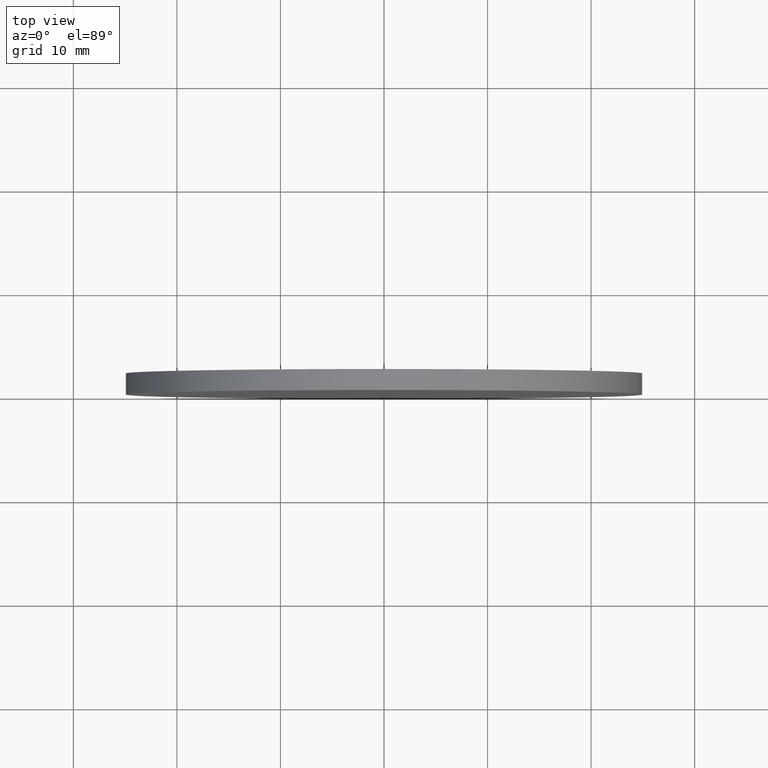
[diagram: clean part render]
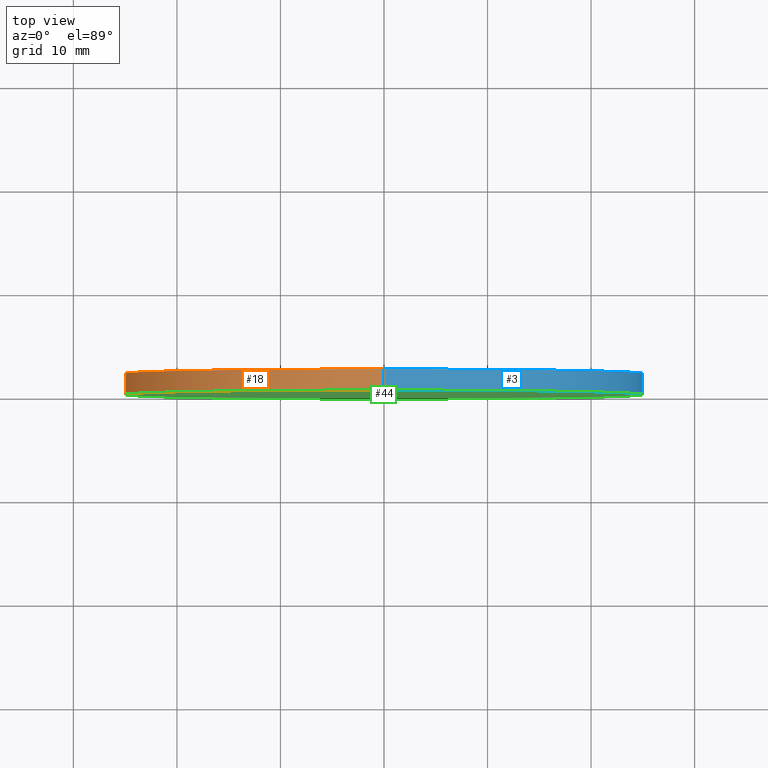
[diagram: same view with three faces highlighted in distinct colors, each labeled with its STEP entity id]
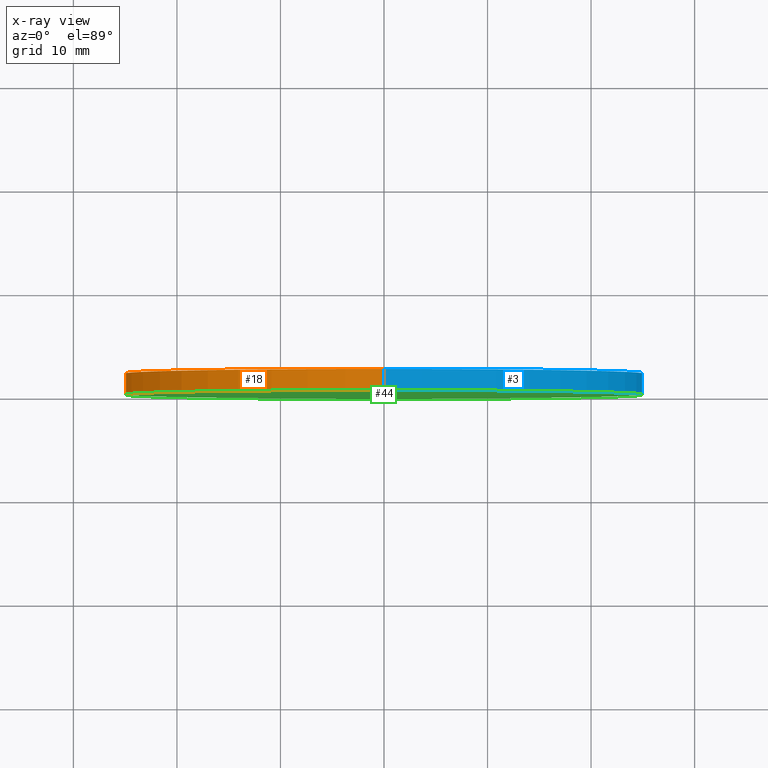
[diagram: x-ray of the same camera — body ghosted, the three highlighted faces saturated]
A machine part, top view with three faces highlighted in distinct colors.
The next image is the same camera in x-ray (body ghosted, the three faces saturated) — at least one of them is partly hidden behind the body in this view.
Their STEP definitions:

[orange] entity #18 — the highlighted cylindrical surface (partial cylindrical patch) has radius 25 mm, axis along (-0, -1, -0).
#1 = VERTEX_POINT ( 'NONE', #31 ) ;
#2 = FACE_OUTER_BOUND ( 'NONE', #19, .T. ) ;
#7 = CARTESIAN_POINT ( 'NONE',  ( 0.0000000000000000000, 2.029999999999999800, -25.00000000000000000 ) ) ;
#12 = AXIS2_PLACEMENT_3D ( 'NONE', #82, #13, #14 ) ;
#13 = DIRECTION ( 'NONE',  ( 0.0000000000000000000, 1.000000000000000000, 0.0000000000000000000 ) ) ;
#14 = DIRECTION ( 'NONE',  ( 0.0000000000000000000, 0.0000000000000000000, 1.000000000000000000 ) ) ;
#15 = VERTEX_POINT ( 'NONE', #124 ) ;
#18 = ADVANCED_FACE ( 'NONE', ( #2 ), #76, .T. ) ;
#19 = EDGE_LOOP ( 'NONE', ( #112, #48, #117, #93 ) ) ;
#20 = LINE ( 'NONE', #7, #26 ) ;
#26 = VECTOR ( 'NONE', #111, 1000.000000000000000 ) ;
#30 = DIRECTION ( 'NONE',  ( -0.0000000000000000000, -1.000000000000000000, -0.0000000000000000000 ) ) ;
#31 = CARTESIAN_POINT ( 'NONE',  ( 0.0000000000000000000, 2.029999999999999800, -25.00000000000000000 ) ) ;
#33 = LINE ( 'NONE', #88, #83 ) ;
#35 = VERTEX_POINT ( 'NONE', #126 ) ;
#36 = DIRECTION ( 'NONE',  ( 0.0000000000000000000, 0.0000000000000000000, -1.000000000000000000 ) ) ;
#47 = AXIS2_PLACEMENT_3D ( 'NONE', #64, #54, #53 ) ;
#48 = ORIENTED_EDGE ( 'NONE', *, *, #78, .F. ) ;
#50 = CARTESIAN_POINT ( 'NONE',  ( 3.061616997868383000E-015, 2.029999999999999800, 25.00000000000000000 ) ) ;
#53 = DIRECTION ( 'NONE',  ( 0.0000000000000000000, 0.0000000000000000000, 1.000000000000000000 ) ) ;
#54 = DIRECTION ( 'NONE',  ( 0.0000000000000000000, 1.000000000000000000, 0.0000000000000000000 ) ) ;
#62 = EDGE_CURVE ( 'NONE', #35, #15, #134, .T. ) ;
#64 = CARTESIAN_POINT ( 'NONE',  ( 0.0000000000000000000, 2.029999999999999800, 0.0000000000000000000 ) ) ;
#65 = EDGE_CURVE ( 'NONE', #1, #35, #20, .T. ) ;
#72 = DIRECTION ( 'NONE',  ( -0.0000000000000000000, -1.000000000000000000, -0.0000000000000000000 ) ) ;
#76 = CYLINDRICAL_SURFACE ( 'NONE', #125, 25.00000000000000000 ) ;
#78 = EDGE_CURVE ( 'NONE', #1, #108, #118, .T. ) ;
#82 = CARTESIAN_POINT ( 'NONE',  ( 0.0000000000000000000, 0.0000000000000000000, 0.0000000000000000000 ) ) ;
#83 = VECTOR ( 'NONE', #30, 1000.000000000000000 ) ;
#88 = CARTESIAN_POINT ( 'NONE',  ( 3.061616997868383000E-015, 2.029999999999999800, 25.00000000000000000 ) ) ;
#93 = ORIENTED_EDGE ( 'NONE', *, *, #62, .T. ) ;
#95 = CARTESIAN_POINT ( 'NONE',  ( 0.0000000000000000000, 2.029999999999999800, 0.0000000000000000000 ) ) ;
#106 = EDGE_CURVE ( 'NONE', #108, #15, #33, .T. ) ;
#108 = VERTEX_POINT ( 'NONE', #50 ) ;
#111 = DIRECTION ( 'NONE',  ( -0.0000000000000000000, -1.000000000000000000, -0.0000000000000000000 ) ) ;
#112 = ORIENTED_EDGE ( 'NONE', *, *, #106, .F. ) ;
#117 = ORIENTED_EDGE ( 'NONE', *, *, #65, .T. ) ;
#118 = CIRCLE ( 'NONE', #47, 25.00000000000000000 ) ;
#124 = CARTESIAN_POINT ( 'NONE',  ( 3.061616997868383000E-015, 0.0000000000000000000, 25.00000000000000000 ) ) ;
#125 = AXIS2_PLACEMENT_3D ( 'NONE', #95, #72, #36 ) ;
#126 = CARTESIAN_POINT ( 'NONE',  ( 0.0000000000000000000, 0.0000000000000000000, -25.00000000000000000 ) ) ;
#134 = CIRCLE ( 'NONE', #12, 25.00000000000000000 ) ;

[blue] entity #3 — the highlighted cylindrical surface (partial cylindrical patch) has radius 25 mm, axis along (-0, -1, -0).
#1 = VERTEX_POINT ( 'NONE', #31 ) ;
#3 = ADVANCED_FACE ( 'NONE', ( #84 ), #40, .T. ) ;
#7 = CARTESIAN_POINT ( 'NONE',  ( 0.0000000000000000000, 2.029999999999999800, -25.00000000000000000 ) ) ;
#9 = AXIS2_PLACEMENT_3D ( 'NONE', #101, #28, #80 ) ;
#15 = VERTEX_POINT ( 'NONE', #124 ) ;
#17 = CARTESIAN_POINT ( 'NONE',  ( 0.0000000000000000000, 2.029999999999999800, 0.0000000000000000000 ) ) ;
#20 = LINE ( 'NONE', #7, #26 ) ;
#23 = ORIENTED_EDGE ( 'NONE', *, *, #75, .T. ) ;
#25 = DIRECTION ( 'NONE',  ( -0.0000000000000000000, -1.000000000000000000, -0.0000000000000000000 ) ) ;
#26 = VECTOR ( 'NONE', #111, 1000.000000000000000 ) ;
#28 = DIRECTION ( 'NONE',  ( 0.0000000000000000000, 1.000000000000000000, 0.0000000000000000000 ) ) ;
#30 = DIRECTION ( 'NONE',  ( -0.0000000000000000000, -1.000000000000000000, -0.0000000000000000000 ) ) ;
#31 = CARTESIAN_POINT ( 'NONE',  ( 0.0000000000000000000, 2.029999999999999800, -25.00000000000000000 ) ) ;
#32 = EDGE_LOOP ( 'NONE', ( #89, #43, #23, #57 ) ) ;
#33 = LINE ( 'NONE', #88, #83 ) ;
#35 = VERTEX_POINT ( 'NONE', #126 ) ;
#40 = CYLINDRICAL_SURFACE ( 'NONE', #85, 25.00000000000000000 ) ;
#42 = DIRECTION ( 'NONE',  ( 0.0000000000000000000, 0.0000000000000000000, -1.000000000000000000 ) ) ;
#43 = ORIENTED_EDGE ( 'NONE', *, *, #106, .T. ) ;
#50 = CARTESIAN_POINT ( 'NONE',  ( 3.061616997868383000E-015, 2.029999999999999800, 25.00000000000000000 ) ) ;
#55 = CIRCLE ( 'NONE', #130, 25.00000000000000000 ) ;
#57 = ORIENTED_EDGE ( 'NONE', *, *, #65, .F. ) ;
#65 = EDGE_CURVE ( 'NONE', #1, #35, #20, .T. ) ;
#75 = EDGE_CURVE ( 'NONE', #15, #35, #55, .T. ) ;
#80 = DIRECTION ( 'NONE',  ( 0.0000000000000000000, 0.0000000000000000000, 1.000000000000000000 ) ) ;
#83 = VECTOR ( 'NONE', #30, 1000.000000000000000 ) ;
#84 = FACE_OUTER_BOUND ( 'NONE', #32, .T. ) ;
#85 = AXIS2_PLACEMENT_3D ( 'NONE', #17, #25, #42 ) ;
#88 = CARTESIAN_POINT ( 'NONE',  ( 3.061616997868383000E-015, 2.029999999999999800, 25.00000000000000000 ) ) ;
#89 = ORIENTED_EDGE ( 'NONE', *, *, #100, .F. ) ;
#96 = CARTESIAN_POINT ( 'NONE',  ( 0.0000000000000000000, 0.0000000000000000000, 0.0000000000000000000 ) ) ;
#100 = EDGE_CURVE ( 'NONE', #108, #1, #129, .T. ) ;
#101 = CARTESIAN_POINT ( 'NONE',  ( 0.0000000000000000000, 2.029999999999999800, 0.0000000000000000000 ) ) ;
#103 = DIRECTION ( 'NONE',  ( 0.0000000000000000000, 1.000000000000000000, 0.0000000000000000000 ) ) ;
#106 = EDGE_CURVE ( 'NONE', #108, #15, #33, .T. ) ;
#108 = VERTEX_POINT ( 'NONE', #50 ) ;
#109 = DIRECTION ( 'NONE',  ( 0.0000000000000000000, 0.0000000000000000000, 1.000000000000000000 ) ) ;
#111 = DIRECTION ( 'NONE',  ( -0.0000000000000000000, -1.000000000000000000, -0.0000000000000000000 ) ) ;
#124 = CARTESIAN_POINT ( 'NONE',  ( 3.061616997868383000E-015, 0.0000000000000000000, 25.00000000000000000 ) ) ;
#126 = CARTESIAN_POINT ( 'NONE',  ( 0.0000000000000000000, 0.0000000000000000000, -25.00000000000000000 ) ) ;
#129 = CIRCLE ( 'NONE', #9, 25.00000000000000000 ) ;
#130 = AXIS2_PLACEMENT_3D ( 'NONE', #96, #103, #109 ) ;

[green] entity #44 — the highlighted planar face has unit normal (0, 1, 0).
#4 = DIRECTION ( 'NONE',  ( 0.0000000000000000000, -0.0000000000000000000, 1.000000000000000000 ) ) ;
#12 = AXIS2_PLACEMENT_3D ( 'NONE', #82, #13, #14 ) ;
#13 = DIRECTION ( 'NONE',  ( 0.0000000000000000000, 1.000000000000000000, 0.0000000000000000000 ) ) ;
#14 = DIRECTION ( 'NONE',  ( 0.0000000000000000000, 0.0000000000000000000, 1.000000000000000000 ) ) ;
#15 = VERTEX_POINT ( 'NONE', #124 ) ;
#27 = ORIENTED_EDGE ( 'NONE', *, *, #62, .F. ) ;
#35 = VERTEX_POINT ( 'NONE', #126 ) ;
#37 = AXIS2_PLACEMENT_3D ( 'NONE', #74, #136, #4 ) ;
#39 = PLANE ( 'NONE',  #37 ) ;
#44 = ADVANCED_FACE ( 'NONE', ( #139 ), #39, .F. ) ;
#49 = EDGE_LOOP ( 'NONE', ( #27, #104 ) ) ;
#55 = CIRCLE ( 'NONE', #130, 25.00000000000000000 ) ;
#62 = EDGE_CURVE ( 'NONE', #35, #15, #134, .T. ) ;
#74 = CARTESIAN_POINT ( 'NONE',  ( 0.0000000000000000000, 0.0000000000000000000, 0.0000000000000000000 ) ) ;
#75 = EDGE_CURVE ( 'NONE', #15, #35, #55, .T. ) ;
#82 = CARTESIAN_POINT ( 'NONE',  ( 0.0000000000000000000, 0.0000000000000000000, 0.0000000000000000000 ) ) ;
#96 = CARTESIAN_POINT ( 'NONE',  ( 0.0000000000000000000, 0.0000000000000000000, 0.0000000000000000000 ) ) ;
#103 = DIRECTION ( 'NONE',  ( 0.0000000000000000000, 1.000000000000000000, 0.0000000000000000000 ) ) ;
#104 = ORIENTED_EDGE ( 'NONE', *, *, #75, .F. ) ;
#109 = DIRECTION ( 'NONE',  ( 0.0000000000000000000, 0.0000000000000000000, 1.000000000000000000 ) ) ;
#124 = CARTESIAN_POINT ( 'NONE',  ( 3.061616997868383000E-015, 0.0000000000000000000, 25.00000000000000000 ) ) ;
#126 = CARTESIAN_POINT ( 'NONE',  ( 0.0000000000000000000, 0.0000000000000000000, -25.00000000000000000 ) ) ;
#130 = AXIS2_PLACEMENT_3D ( 'NONE', #96, #103, #109 ) ;
#134 = CIRCLE ( 'NONE', #12, 25.00000000000000000 ) ;
#136 = DIRECTION ( 'NONE',  ( 0.0000000000000000000, 1.000000000000000000, 0.0000000000000000000 ) ) ;
#139 = FACE_OUTER_BOUND ( 'NONE', #49, .T. ) ;